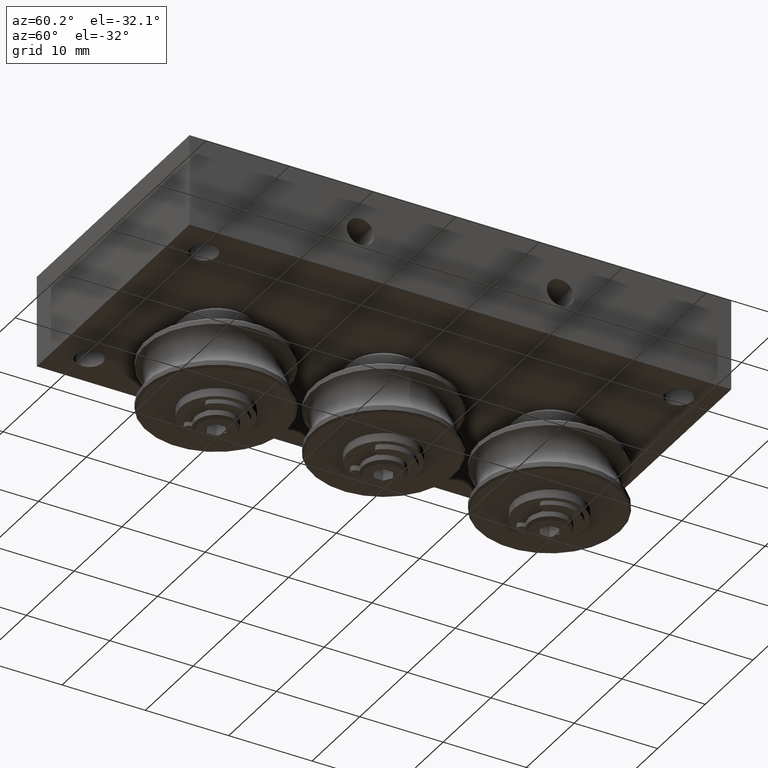
[diagram: clean part render]
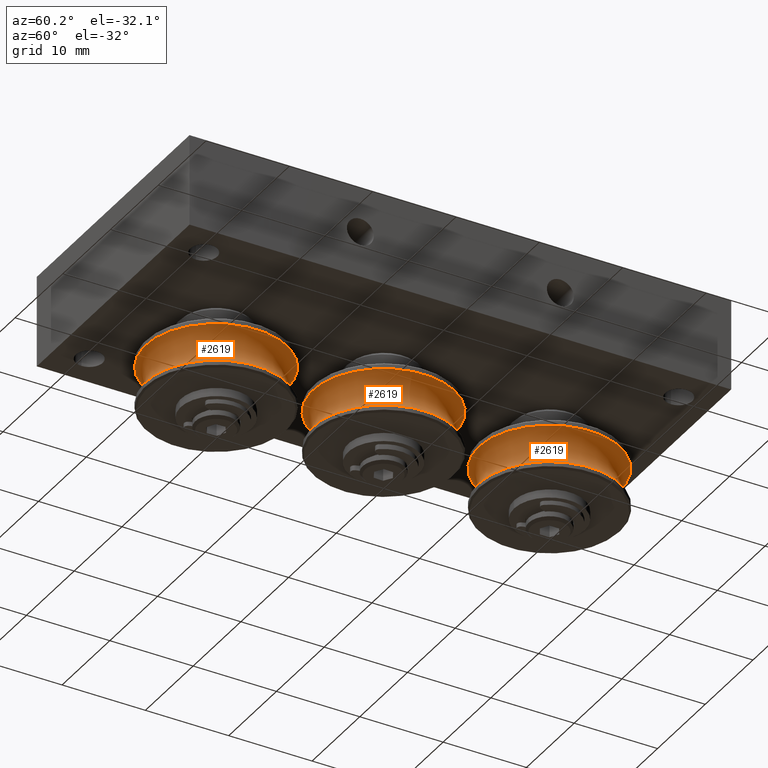
[diagram: same view with one multi-face feature highlighted, each face labeled with its STEP entity id]
A machine part, auxiliary view. The highlighted faces form ONE feature: a constant-radius fillet chain: 3 tangent blend faces with common blend radius 3 mm. The faces share edges in the B-rep.
Their STEP definitions:
[1] entity #2619 (Torus):
#79=TOROIDAL_SURFACE('',#3079,10.5,3.);
#399=FACE_OUTER_BOUND('',#593,.T.);
#593=EDGE_LOOP('',(#2268,#2269,#2270,#2271,#2272,#2273));
#1133=CIRCLE('',#3064,8.5);
#1134=CIRCLE('',#3065,8.5);
#1138=CIRCLE('',#3071,8.5);
#1139=CIRCLE('',#3072,8.5);
#1143=CIRCLE('',#3080,3.);
#1337=VERTEX_POINT('',#4545);
#1338=VERTEX_POINT('',#4546);
#1342=VERTEX_POINT('',#4559);
#1343=VERTEX_POINT('',#4561);
#1651=EDGE_CURVE('',#1337,#1338,#1133,.T.);
#1653=EDGE_CURVE('',#1338,#1337,#1134,.T.);
#1659=EDGE_CURVE('',#1342,#1343,#1138,.T.);
#1660=EDGE_CURVE('',#1343,#1342,#1139,.T.);
#1665=EDGE_CURVE('',#1338,#1343,#1143,.T.);
#2268=ORIENTED_EDGE('',*,*,#1651,.T.);
#2269=ORIENTED_EDGE('',*,*,#1665,.T.);
#2270=ORIENTED_EDGE('',*,*,#1659,.F.);
#2271=ORIENTED_EDGE('',*,*,#1660,.F.);
#2272=ORIENTED_EDGE('',*,*,#1665,.F.);
#2273=ORIENTED_EDGE('',*,*,#1653,.T.);
#2619=ADVANCED_FACE('',(#399),#79,.F.);
#3064=AXIS2_PLACEMENT_3D('',#4547,#3748,#3749);
#3065=AXIS2_PLACEMENT_3D('',#4549,#3751,#3752);
#3071=AXIS2_PLACEMENT_3D('',#4562,#3765,#3766);
#3072=AXIS2_PLACEMENT_3D('',#4563,#3767,#3768);
#3079=AXIS2_PLACEMENT_3D('',#4574,#3782,#3783);
#3080=AXIS2_PLACEMENT_3D('',#4575,#3784,#3785);
#3748=DIRECTION('center_axis',(1.,0.,0.));
#3749=DIRECTION('ref_axis',(0.,1.,0.));
#3751=DIRECTION('center_axis',(1.,0.,0.));
#3752=DIRECTION('ref_axis',(0.,1.,0.));
#3765=DIRECTION('center_axis',(1.,0.,0.));
#3766=DIRECTION('ref_axis',(0.,1.,0.));
#3767=DIRECTION('center_axis',(1.,0.,0.));
#3768=DIRECTION('ref_axis',(0.,1.,0.));
#3782=DIRECTION('center_axis',(1.,0.,0.));
#3783=DIRECTION('ref_axis',(0.,0.,-1.));
#3784=DIRECTION('center_axis',(0.,-1.,-1.22464679914735E-16));
#3785=DIRECTION('ref_axis',(0.,-1.22464679914735E-16,1.));
#4545=CARTESIAN_POINT('',(-2.23606797749979,-8.5,-1.04094977927525E-15));
#4546=CARTESIAN_POINT('',(-2.23606797749979,-1.04094977927525E-15,8.5));
#4547=CARTESIAN_POINT('Origin',(-2.23606797749979,0.,0.));
#4549=CARTESIAN_POINT('Origin',(-2.23606797749979,0.,0.));
#4559=CARTESIAN_POINT('',(2.23606797749979,-8.5,-1.04094977927525E-15));
#4561=CARTESIAN_POINT('',(2.23606797749979,-1.04094977927525E-15,8.5));
#4562=CARTESIAN_POINT('Origin',(2.23606797749979,0.,0.));
#4563=CARTESIAN_POINT('Origin',(2.23606797749979,0.,0.));
#4574=CARTESIAN_POINT('Origin',(0.,0.,0.));
#4575=CARTESIAN_POINT('Origin',(0.,-1.28587913910472E-15,10.5));
[2] entity #2619 (Torus):
#79=TOROIDAL_SURFACE('',#3079,10.5,3.);
#399=FACE_OUTER_BOUND('',#593,.T.);
#593=EDGE_LOOP('',(#2268,#2269,#2270,#2271,#2272,#2273));
#1133=CIRCLE('',#3064,8.5);
#1134=CIRCLE('',#3065,8.5);
#1138=CIRCLE('',#3071,8.5);
#1139=CIRCLE('',#3072,8.5);
#1143=CIRCLE('',#3080,3.);
#1337=VERTEX_POINT('',#4545);
#1338=VERTEX_POINT('',#4546);
#1342=VERTEX_POINT('',#4559);
#1343=VERTEX_POINT('',#4561);
#1651=EDGE_CURVE('',#1337,#1338,#1133,.T.);
#1653=EDGE_CURVE('',#1338,#1337,#1134,.T.);
#1659=EDGE_CURVE('',#1342,#1343,#1138,.T.);
#1660=EDGE_CURVE('',#1343,#1342,#1139,.T.);
#1665=EDGE_CURVE('',#1338,#1343,#1143,.T.);
#2268=ORIENTED_EDGE('',*,*,#1651,.T.);
#2269=ORIENTED_EDGE('',*,*,#1665,.T.);
#2270=ORIENTED_EDGE('',*,*,#1659,.F.);
#2271=ORIENTED_EDGE('',*,*,#1660,.F.);
#2272=ORIENTED_EDGE('',*,*,#1665,.F.);
#2273=ORIENTED_EDGE('',*,*,#1653,.T.);
#2619=ADVANCED_FACE('',(#399),#79,.F.);
#3064=AXIS2_PLACEMENT_3D('',#4547,#3748,#3749);
#3065=AXIS2_PLACEMENT_3D('',#4549,#3751,#3752);
#3071=AXIS2_PLACEMENT_3D('',#4562,#3765,#3766);
#3072=AXIS2_PLACEMENT_3D('',#4563,#3767,#3768);
#3079=AXIS2_PLACEMENT_3D('',#4574,#3782,#3783);
#3080=AXIS2_PLACEMENT_3D('',#4575,#3784,#3785);
#3748=DIRECTION('center_axis',(1.,0.,0.));
#3749=DIRECTION('ref_axis',(0.,1.,0.));
#3751=DIRECTION('center_axis',(1.,0.,0.));
#3752=DIRECTION('ref_axis',(0.,1.,0.));
#3765=DIRECTION('center_axis',(1.,0.,0.));
#3766=DIRECTION('ref_axis',(0.,1.,0.));
#3767=DIRECTION('center_axis',(1.,0.,0.));
#3768=DIRECTION('ref_axis',(0.,1.,0.));
#3782=DIRECTION('center_axis',(1.,0.,0.));
#3783=DIRECTION('ref_axis',(0.,0.,-1.));
#3784=DIRECTION('center_axis',(0.,-1.,-1.22464679914735E-16));
#3785=DIRECTION('ref_axis',(0.,-1.22464679914735E-16,1.));
#4545=CARTESIAN_POINT('',(-2.23606797749979,-8.5,-1.04094977927525E-15));
#4546=CARTESIAN_POINT('',(-2.23606797749979,-1.04094977927525E-15,8.5));
#4547=CARTESIAN_POINT('Origin',(-2.23606797749979,0.,0.));
#4549=CARTESIAN_POINT('Origin',(-2.23606797749979,0.,0.));
#4559=CARTESIAN_POINT('',(2.23606797749979,-8.5,-1.04094977927525E-15));
#4561=CARTESIAN_POINT('',(2.23606797749979,-1.04094977927525E-15,8.5));
#4562=CARTESIAN_POINT('Origin',(2.23606797749979,0.,0.));
#4563=CARTESIAN_POINT('Origin',(2.23606797749979,0.,0.));
#4574=CARTESIAN_POINT('Origin',(0.,0.,0.));
#4575=CARTESIAN_POINT('Origin',(0.,-1.28587913910472E-15,10.5));
[3] entity #2619 (Torus):
#79=TOROIDAL_SURFACE('',#3079,10.5,3.);
#399=FACE_OUTER_BOUND('',#593,.T.);
#593=EDGE_LOOP('',(#2268,#2269,#2270,#2271,#2272,#2273));
#1133=CIRCLE('',#3064,8.5);
#1134=CIRCLE('',#3065,8.5);
#1138=CIRCLE('',#3071,8.5);
#1139=CIRCLE('',#3072,8.5);
#1143=CIRCLE('',#3080,3.);
#1337=VERTEX_POINT('',#4545);
#1338=VERTEX_POINT('',#4546);
#1342=VERTEX_POINT('',#4559);
#1343=VERTEX_POINT('',#4561);
#1651=EDGE_CURVE('',#1337,#1338,#1133,.T.);
#1653=EDGE_CURVE('',#1338,#1337,#1134,.T.);
#1659=EDGE_CURVE('',#1342,#1343,#1138,.T.);
#1660=EDGE_CURVE('',#1343,#1342,#1139,.T.);
#1665=EDGE_CURVE('',#1338,#1343,#1143,.T.);
#2268=ORIENTED_EDGE('',*,*,#1651,.T.);
#2269=ORIENTED_EDGE('',*,*,#1665,.T.);
#2270=ORIENTED_EDGE('',*,*,#1659,.F.);
#2271=ORIENTED_EDGE('',*,*,#1660,.F.);
#2272=ORIENTED_EDGE('',*,*,#1665,.F.);
#2273=ORIENTED_EDGE('',*,*,#1653,.T.);
#2619=ADVANCED_FACE('',(#399),#79,.F.);
#3064=AXIS2_PLACEMENT_3D('',#4547,#3748,#3749);
#3065=AXIS2_PLACEMENT_3D('',#4549,#3751,#3752);
#3071=AXIS2_PLACEMENT_3D('',#4562,#3765,#3766);
#3072=AXIS2_PLACEMENT_3D('',#4563,#3767,#3768);
#3079=AXIS2_PLACEMENT_3D('',#4574,#3782,#3783);
#3080=AXIS2_PLACEMENT_3D('',#4575,#3784,#3785);
#3748=DIRECTION('center_axis',(1.,0.,0.));
#3749=DIRECTION('ref_axis',(0.,1.,0.));
#3751=DIRECTION('center_axis',(1.,0.,0.));
#3752=DIRECTION('ref_axis',(0.,1.,0.));
#3765=DIRECTION('center_axis',(1.,0.,0.));
#3766=DIRECTION('ref_axis',(0.,1.,0.));
#3767=DIRECTION('center_axis',(1.,0.,0.));
#3768=DIRECTION('ref_axis',(0.,1.,0.));
#3782=DIRECTION('center_axis',(1.,0.,0.));
#3783=DIRECTION('ref_axis',(0.,0.,-1.));
#3784=DIRECTION('center_axis',(0.,-1.,-1.22464679914735E-16));
#3785=DIRECTION('ref_axis',(0.,-1.22464679914735E-16,1.));
#4545=CARTESIAN_POINT('',(-2.23606797749979,-8.5,-1.04094977927525E-15));
#4546=CARTESIAN_POINT('',(-2.23606797749979,-1.04094977927525E-15,8.5));
#4547=CARTESIAN_POINT('Origin',(-2.23606797749979,0.,0.));
#4549=CARTESIAN_POINT('Origin',(-2.23606797749979,0.,0.));
#4559=CARTESIAN_POINT('',(2.23606797749979,-8.5,-1.04094977927525E-15));
#4561=CARTESIAN_POINT('',(2.23606797749979,-1.04094977927525E-15,8.5));
#4562=CARTESIAN_POINT('Origin',(2.23606797749979,0.,0.));
#4563=CARTESIAN_POINT('Origin',(2.23606797749979,0.,0.));
#4574=CARTESIAN_POINT('Origin',(0.,0.,0.));
#4575=CARTESIAN_POINT('Origin',(0.,-1.28587913910472E-15,10.5));